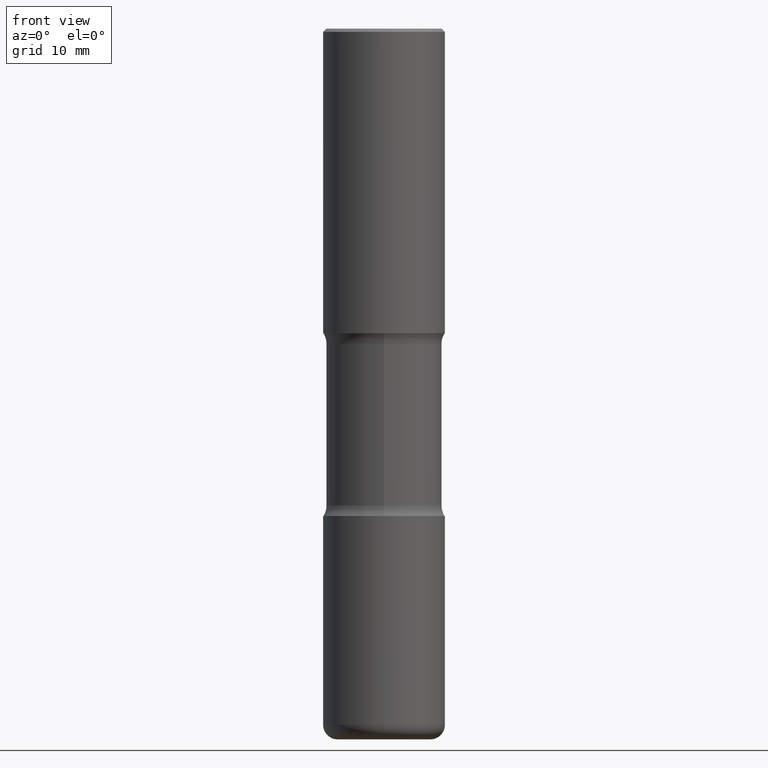
[diagram: clean part render]
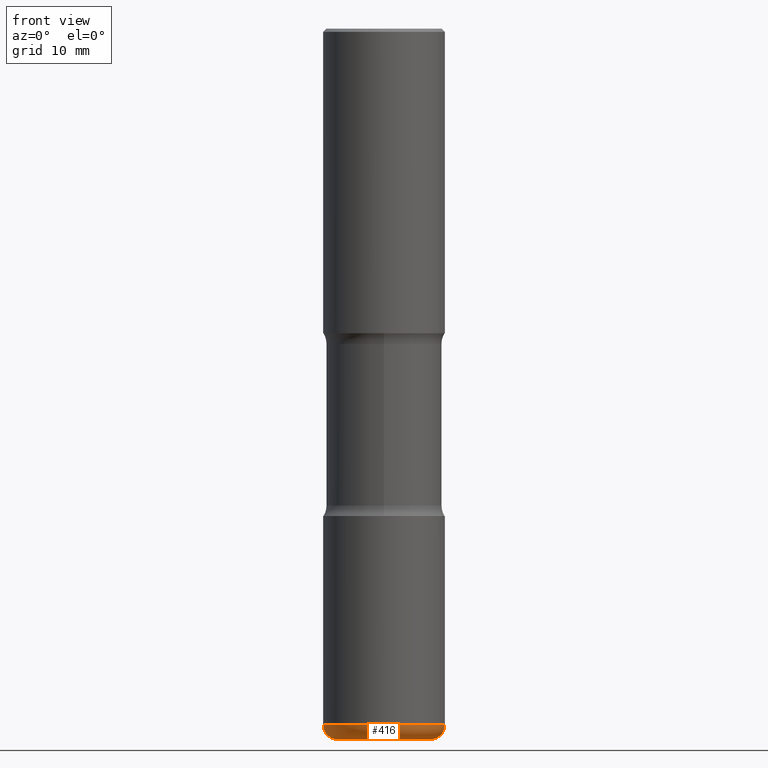
[diagram: same view with one face highlighted and labeled with its STEP entity id]
A machine part, front view. The second image highlights one B-rep face of the part: STEP entity #416.
In plain terms, the highlighted toroidal blend (fillet) surface has major radius 7.239 mm and minor (blend) radius 2.286 mm.
Its self-contained STEP definition (entity closure, byte-faithful):
#1 = FACE_OUTER_BOUND ( 'NONE', #129, .T. ) ;
#2 = ORIENTED_EDGE ( 'NONE', *, *, #104, .F. ) ;
#19 = CARTESIAN_POINT ( 'NONE',  ( 0.2850000000000004197, -1.695114190008346703E-14, -4.285000000000000142 ) ) ;
#20 = EDGE_CURVE ( 'NONE', #68, #336, #272, .T. ) ;
#22 = AXIS2_PLACEMENT_3D ( 'NONE', #19, #446, #61 ) ;
#29 = CIRCLE ( 'NONE', #547, 0.3750000000000004441 ) ;
#57 = DIRECTION ( 'NONE',  ( 1.000000000000000000, -6.982962677686269866E-15, 0.000000000000000000 ) ) ;
#61 = DIRECTION ( 'NONE',  ( 1.000000000000000000, -6.982962677686273021E-15, 0.000000000000000000 ) ) ;
#68 = VERTEX_POINT ( 'NONE', #293 ) ;
#90 = DIRECTION ( 'NONE',  ( 7.105427357601001859E-15, 1.000000000000000000, -3.491481338843145583E-15 ) ) ;
#92 = CARTESIAN_POINT ( 'NONE',  ( 1.069892602705997485E-28, -1.527523085743876365E-14, -4.375000000000000888 ) ) ;
#104 = EDGE_CURVE ( 'NONE', #434, #243, #29, .T. ) ;
#129 = EDGE_LOOP ( 'NONE', ( #505, #338, #546, #2 ) ) ;
#176 = DIRECTION ( 'NONE',  ( 1.000000000000000000, -6.982962677686266711E-15, 4.883557194083113462E-29 ) ) ;
#205 = EDGE_CURVE ( 'NONE', #336, #243, #399, .T. ) ;
#220 = DIRECTION ( 'NONE',  ( -2.445468806185136597E-29, 3.491481338843145583E-15, 1.000000000000000000 ) ) ;
#237 = AXIS2_PLACEMENT_3D ( 'NONE', #252, #90, #474 ) ;
#243 = VERTEX_POINT ( 'NONE', #274 ) ;
#252 = CARTESIAN_POINT ( 'NONE',  ( -0.2850000000000004197, -1.293595074002659227E-14, -4.285000000000000142 ) ) ;
#267 = CIRCLE ( 'NONE', #237, 0.09000000000000020484 ) ;
#272 = CIRCLE ( 'NONE', #555, 0.2850000000000004197 ) ;
#274 = CARTESIAN_POINT ( 'NONE',  ( 0.3750000000000004996, -1.757960854107523356E-14, -4.285000000000000142 ) ) ;
#293 = CARTESIAN_POINT ( 'NONE',  ( -0.2850000000000004197, -1.277332316918248932E-14, -4.375000000000000888 ) ) ;
#336 = VERTEX_POINT ( 'NONE', #551 ) ;
#338 = ORIENTED_EDGE ( 'NONE', *, *, #20, .T. ) ;
#346 = CARTESIAN_POINT ( 'NONE',  ( -0.3750000000000004996, -1.229646227784250153E-14, -4.285000000000000142 ) ) ;
#399 = CIRCLE ( 'NONE', #22, 0.09000000000000020484 ) ;
#416 = ADVANCED_FACE ( 'NONE', ( #1 ), #426, .T. ) ;
#426 = TOROIDAL_SURFACE ( 'NONE', #465, 0.2850000000000004197, 0.09000000000000020484 ) ;
#432 = DIRECTION ( 'NONE',  ( 1.000000000000000000, -6.982962677686264344E-15, 0.000000000000000000 ) ) ;
#434 = VERTEX_POINT ( 'NONE', #346 ) ;
#446 = DIRECTION ( 'NONE',  ( -6.982962677686266711E-15, -1.000000000000000000, 3.491481338843145583E-15 ) ) ;
#447 = DIRECTION ( 'NONE',  ( -2.445468806185136597E-29, 3.491481338843145583E-15, 1.000000000000000000 ) ) ;
#465 = AXIS2_PLACEMENT_3D ( 'NONE', #479, #472, #176 ) ;
#472 = DIRECTION ( 'NONE',  ( -2.445468806185136597E-29, 3.491481338843145583E-15, 1.000000000000000000 ) ) ;
#474 = DIRECTION ( 'NONE',  ( -1.000000000000000000, 7.105427357600996337E-15, 0.000000000000000000 ) ) ;
#479 = CARTESIAN_POINT ( 'NONE',  ( 1.047883383450331094E-28, -1.496099753694288039E-14, -4.285000000000000142 ) ) ;
#490 = EDGE_CURVE ( 'NONE', #68, #434, #267, .T. ) ;
#493 = CARTESIAN_POINT ( 'NONE',  ( 1.047883383450331094E-28, -1.496099753694288039E-14, -4.285000000000000142 ) ) ;
#505 = ORIENTED_EDGE ( 'NONE', *, *, #490, .F. ) ;
#546 = ORIENTED_EDGE ( 'NONE', *, *, #205, .T. ) ;
#547 = AXIS2_PLACEMENT_3D ( 'NONE', #493, #447, #57 ) ;
#551 = CARTESIAN_POINT ( 'NONE',  ( 0.2850000000000004197, -1.726537522057935345E-14, -4.375000000000000888 ) ) ;
#555 = AXIS2_PLACEMENT_3D ( 'NONE', #92, #220, #432 ) ;